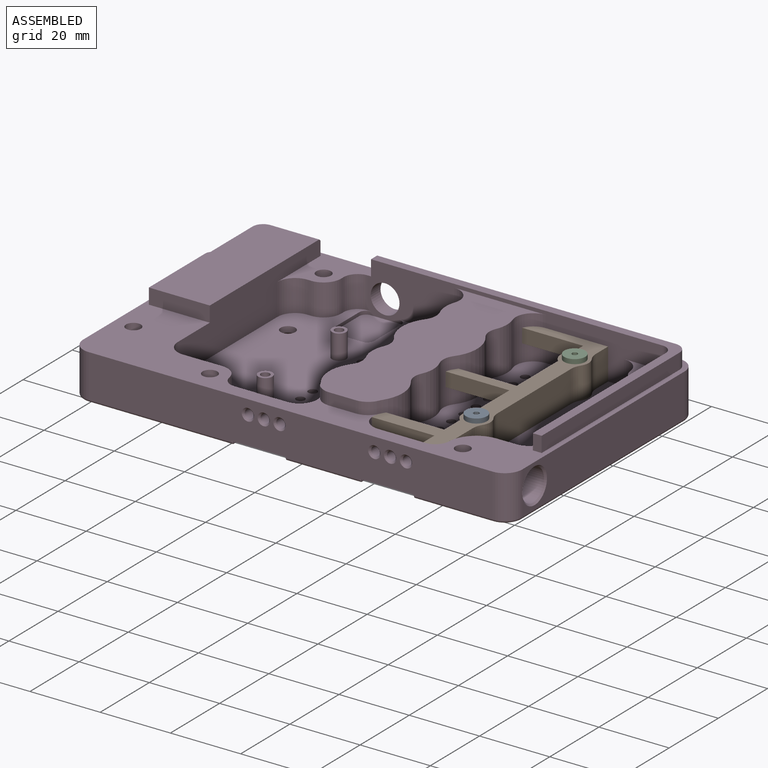
[diagram: assembled view]
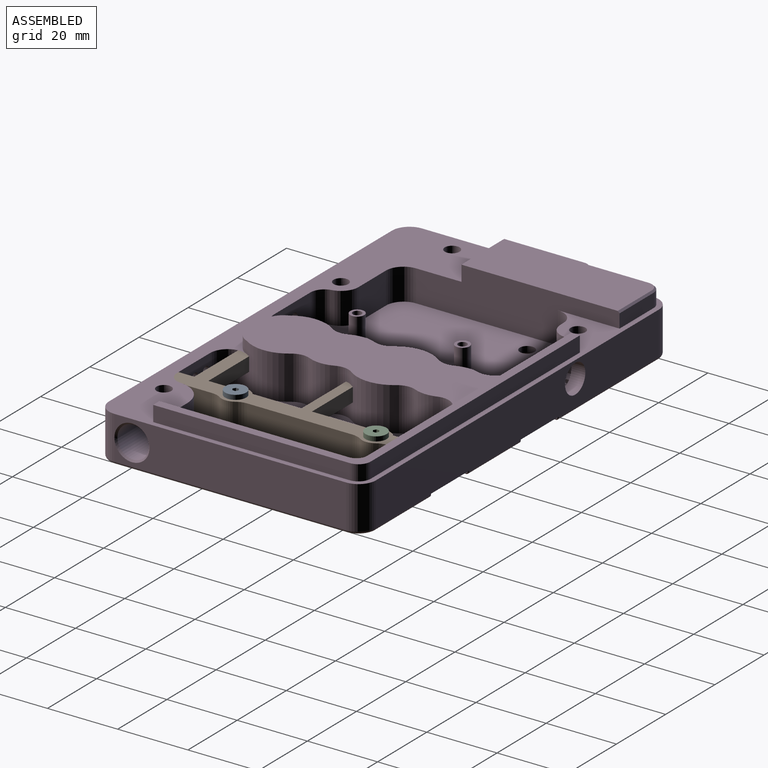
[diagram: assembled view, second angle]
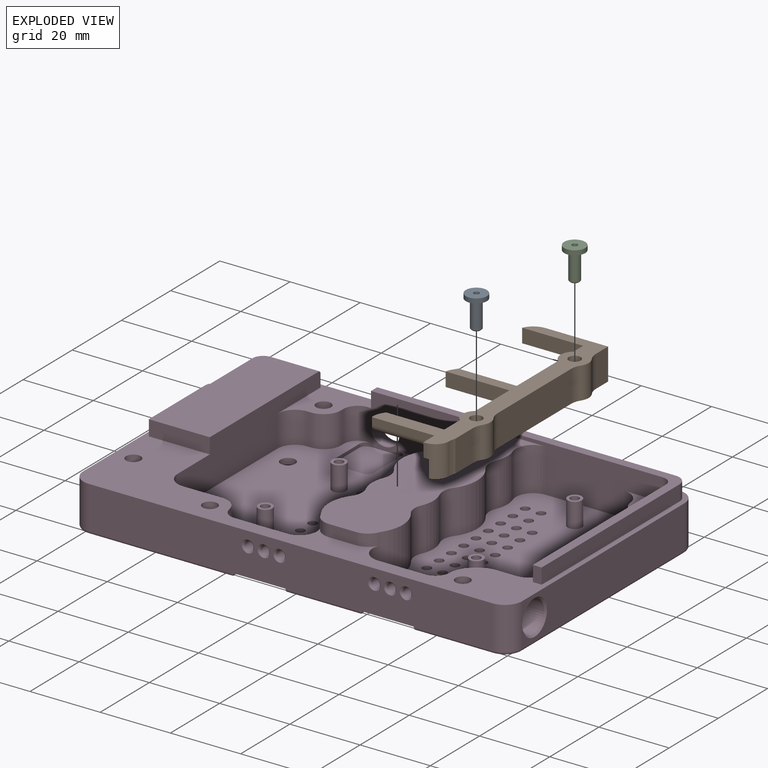
[diagram: exploded view]
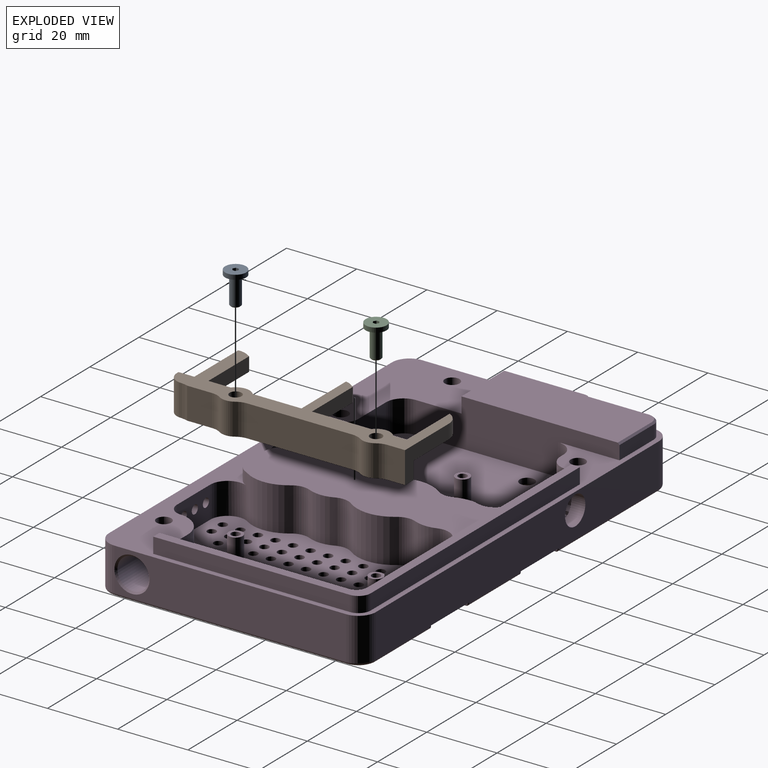
[diagram: exploded view, second angle]
ASSEMBLY  parts=4 mates=3
PART A: 20 faces, bbox 9.3x6x6 mm
  f0: cylinder r=3mm len=6mm, axis (-1,0,0), area 24.5mm2, adj f1,f13
  f1: plane 6x6mm, normal (-1,0,0), area 26.3mm2, adj f0,f2,f3,f4,f5,f6,f7
  f2: plane 2x0.75mm, normal (0,-0.87,0.5), area 1.7mm2, adj f1,f3,f4,f16,f17
  f3: plane 2x0.75mm, normal (0,-0.87,-0.5), area 1.7mm2, adj f1,f2,f7,f17,f18
  f4: plane 2x0.87mm, normal (0,0,1), area 1.7mm2, adj f1,f2,f5,f14,f16
  f5: plane 2x0.75mm, normal (0,0.87,0.5), area 1.7mm2, adj f1,f4,f6,f14,f15
  f6: plane 2x0.75mm, normal (0,0.87,-0.5), area 1.7mm2, adj f1,f5,f7,f15,f19
  f7: plane 2x0.87mm, normal (0,0,-1), area 1.7mm2, adj f1,f3,f6,f18,f19
  f8: cone r=0.75mm half-angle=60deg, axis (-1,0,0), area 2mm2, adj f14,f15,f16,f17,f18,f19
  f9: plane 2.39x2.39mm, normal (1,0,0), area 4.5mm2, adj f10
  f10: cone r=1.5mm half-angle=45deg, axis (-1,0,0), area 3.7mm2, adj f9,f11
  f11: cylinder r=1.5mm len=7.59mm, axis (-1,0,0), area 71.6mm2, adj f10,f12
  f12: torus R=1.6mm, axis (1,0,0), area 1.5mm2, adj f11,f13
  f13: plane 6x6mm, normal (1,0,0), area 20.2mm2, adj f0,f12
  f14: plane 0.65x0.38mm, normal (-1,0,0), area 0mm2, adj f4,f5,f8
  f15: plane 0.75x0.22mm, normal (-1,0,0), area 0mm2, adj f5,f6,f8
  f16: plane 0.65x0.38mm, normal (-1,0,0), area 0mm2, adj f2,f4,f8
  f17: plane 0.75x0.22mm, normal (-1,0,0), area 0mm2, adj f2,f3,f8
  f18: plane 0.65x0.38mm, normal (-1,0,0), area 0mm2, adj f3,f7,f8
  f19: plane 0.65x0.38mm, normal (-1,0,0), area 0mm2, adj f6,f7,f8
PART B: 47 faces, bbox 24.7x68x9 mm
  f0: plane 16.57x4mm, normal (0,-1,0), area 66.3mm2, adj f1,f21,f32,f46
  f1: plane 68x19.65mm, normal (0,0,-1), area 247.5mm2, adj f0,f3,f4,f5,f6,f9,f10,f11
  f2: plane 17.81x2mm, normal (0,1,0), area 35.6mm2, adj f3,f4,f32,f45
  f3: cylinder r=2mm len=17.84mm, axis (-1,0,0), area 55.9mm2, adj f1,f2,f4,f45
  f4: plane 6.5x4mm, normal (1,0,0), area 18.9mm2, adj f1,f2,f3,f22,f32
  f5: plane 36.42x5mm, normal (1,0,0), area 182.1mm2, adj f1,f33,f34,f36
  f6: plane 16.11x5mm, normal (1,0,0), area 80.6mm2, adj f1,f23,f33,f36
  f7: plane 4.1x3.05mm, normal (0,0,-1), area 2.8mm2, adj f29,f33,f37,f40
  f8: plane 4.1x3.05mm, normal (0,0,-1), area 2.8mm2, adj f31,f34,f38,f39
  f9: plane 17.81x9mm, normal (0,-1,0), area 88.7mm2, adj f1,f10,f30,f32,f35,f36
  f10: cylinder r=5mm len=4.58mm, axis (0,0,-1), area 23.2mm2, adj f1,f9,f11,f32
  f11: plane 17.39x4mm, normal (0,1,0), area 69.6mm2, adj f1,f10,f12,f32
  f12: plane 4x3.88mm, normal (1,0,0), area 15.5mm2, adj f1,f11,f13,f32
  f13: cylinder r=4mm len=6.25mm, axis (0,0,-1), area 28.7mm2, adj f1,f12,f14,f32
  f14: plane 16.88x4mm, normal (1,0,0), area 67.5mm2, adj f1,f13,f15,f32
  f15: plane 16.62x4mm, normal (0,-1,0), area 66.5mm2, adj f1,f14,f16,f32
  f16: cylinder r=10.7mm len=4mm, axis (0,0,-1), area 4.4mm2, adj f1,f15,f17,f32
  f17: cylinder r=5mm len=4mm, axis (0,0,-1), area 9.2mm2, adj f1,f16,f18,f32
  f18: plane 18.15x4mm, normal (0,1,0), area 72.6mm2, adj f1,f17,f19,f32
  f19: plane 13.88x4mm, normal (1,0,0), area 55.5mm2, adj f1,f18,f20,f32
  f20: cylinder r=4mm len=6.25mm, axis (0,0,-1), area 28.7mm2, adj f1,f19,f21,f32
  f21: plane 6.38x4mm, normal (1,0,0), area 25.5mm2, adj f0,f1,f20,f32
  f22: plane 4x0.63mm, normal (0,1,0), area 2.5mm2, adj f1,f4,f23,f32
  f23: cylinder r=4mm len=9mm, axis (0,0,-1), area 46.1mm2, adj f1,f6,f22,f24,f32,f36
  f24: cylinder r=8.17mm len=9mm, axis (0,0,-1), area 24mm2, adj f23,f25,f32,f36
  f25: plane 9x7.08mm, normal (-1,0,0), area 63.7mm2, adj f24,f32,f36,f42
  f26: cylinder r=4mm len=9mm, axis (0,0,-1), area 42.2mm2, adj f32,f36,f41,f42
  f27: plane 30.05x9mm, normal (-1,0,0), area 270.5mm2, adj f32,f36,f41,f43
  f28: cylinder r=4mm len=9mm, axis (0,0,-1), area 42.2mm2, adj f32,f36,f43,f44
  f29: cylinder r=1.7mm len=4mm, axis (0,0,-1), area 27.8mm2, adj f1,f7,f32,f37,f40
  f30: plane 9x5.03mm, normal (-1,0,0), area 45.2mm2, adj f9,f32,f36,f44
  f31: cylinder r=1.7mm len=4mm, axis (0,0,-1), area 27.8mm2, adj f1,f8,f32,f38,f39
  f32: plane 68x24.65mm, normal (0,0,1), area 514.5mm2, adj f0,f2,f4,f9,f10,f11,f12,f13
  f33: cylinder r=2.05mm len=7mm, axis (0,0,1), area 59.7mm2, adj f5,f6,f7,f36,f37,f40
  f34: cylinder r=2.05mm len=7mm, axis (0,0,1), area 59.7mm2, adj f5,f8,f35,f36,f38,f39
  f35: plane 8.21x5mm, normal (1,0,0), area 41.1mm2, adj f1,f9,f34,f36
  f36: plane 67.9x5mm, normal (0,0,-1), area 225.9mm2, adj f5,f6,f9,f23,f24,f25,f26,f27
  f37: plane 2x0.41mm, normal (-1,0,0), area 0.8mm2, adj f1,f7,f29,f33
  f38: plane 2x0.41mm, normal (-1,0,0), area 0.8mm2, adj f1,f8,f31,f34
  f39: plane 2x0.41mm, normal (-1,0,0), area 0.8mm2, adj f1,f8,f31,f34
  f40: plane 2x0.41mm, normal (-1,0,0), area 0.8mm2, adj f1,f7,f29,f33
  f41: cylinder r=5mm len=9mm, axis (0,0,-1), area 26.4mm2, adj f26,f27,f32,f36
  f42: cylinder r=5mm len=9mm, axis (0,0,-1), area 26.4mm2, adj f25,f26,f32,f36
  f43: cylinder r=5mm len=9mm, axis (0,0,-1), area 26.4mm2, adj f27,f28,f32,f36
  f44: cylinder r=5mm len=9mm, axis (0,0,-1), area 26.4mm2, adj f28,f30,f32,f36
  f45: cylinder r=5mm len=4mm, axis (0,0,1), area 12.8mm2, adj f1,f2,f3,f32,f46
  f46: cylinder r=10.5mm len=4mm, axis (0,0,1), area 3.5mm2, adj f0,f1,f32,f45
PART C: same geometry as A
PART D: 328 faces, bbox 126.1x77.1x17.7 mm
  f0: plane 68x45.38mm, normal (0,0,-1), area 2332mm2, adj f2,f4,f5,f6,f10,f12,f27,f53
  f1: plane 64x25.99mm, normal (0,0,-1), area 1135mm2, adj f2,f3,f4,f5,f6,f7,f8,f9
  f2: cylinder r=5mm len=12.4mm, axis (0,0,1), area 95.7mm2, adj f0,f1,f6,f10,f13,f221,f300
  f3: cylinder r=5mm len=12.4mm, axis (0,0,1), area 99.7mm2, adj f1,f11,f13,f25,f29,f301
  f4: cylinder r=10.7mm len=12.83mm, axis (0,0,1), area 170.6mm2, adj f0,f1,f219,f220
  f5: cylinder r=8.75mm len=12.4mm, axis (0,0,1), area 92.6mm2, adj f0,f1,f218,f219
  f6: cylinder r=10.5mm len=12.4mm, axis (0,0,1), area 158.4mm2, adj f0,f1,f2,f218
  f7: cylinder r=8.75mm len=12.4mm, axis (0,0,1), area 81.6mm2, adj f1,f29,f214,f217
  f8: cylinder r=10.7mm len=12.83mm, axis (0,0,1), area 170.6mm2, adj f1,f29,f216,f217
  f9: cylinder r=8.75mm len=12.4mm, axis (0,0,1), area 92.6mm2, adj f1,f29,f215,f216
  f10: plane 14.86x9mm, normal (0,1,0), area 123mm2, adj f0,f2,f13,f134,f221,f225,f226
  f11: cylinder r=10.5mm len=12.4mm, axis (0,0,1), area 158.4mm2, adj f1,f3,f29,f215
  f12: cylinder r=8.75mm len=12.4mm, axis (0,0,1), area 81.6mm2, adj f0,f1,f213,f220
  f13: plane 125x76mm, normal (0,0,-1), area 1906.4mm2, adj f2,f3,f10,f14,f17,f18,f25,f26
  f14: cylinder r=2.1mm len=10.7mm, axis (0,0,1), area 111mm2, adj f13,f56,f184,f185
  f15: cylinder r=5mm len=7mm, axis (0,0,1), area 51.5mm2, adj f27,f29,f52,f163
  f16: cylinder r=5mm len=7mm, axis (0,0,1), area 51.5mm2, adj f26,f29,f52,f163
  f17: plane 115x12.2mm, normal (0,-1,0), area 1339.1mm2, adj f13,f21,f22,f30,f31,f39,f137,f140
  f18: plane 115x12.2mm, normal (0,1,0), area 1344mm2, adj f13,f23,f24,f33,f34,f42,f137,f140
  f19: plane 74.4x21.1mm, normal (0,0,1), area 1094.6mm2, adj f21,f23,f150,f160,f209,f210,f211,f212
  f20: plane 74.4x26.55mm, normal (0,0,1), area 1846.1mm2, adj f22,f24,f41,f43,f44,f56,f59,f145
  f21: cylinder r=0.8mm len=21.1mm, axis (-1,0,0), area 26.5mm2, adj f17,f19,f151,f161
  f22: cylinder r=0.8mm len=22.35mm, axis (-1,0,0), area 28.1mm2, adj f17,f20,f41,f146
  f23: cylinder r=0.8mm len=21.1mm, axis (1,0,0), area 26.5mm2, adj f18,f19,f149,f159
  f24: cylinder r=0.8mm len=22.35mm, axis (1,0,0), area 28.1mm2, adj f18,f20,f44,f144
  f25: plane 13.46x9mm, normal (0,1,0), area 106.5mm2, adj f3,f13,f29,f135,f222,f223,f224
  f26: plane 54x13.42mm, normal (1,0,0), area 598.3mm2, adj f13,f16,f29,f128,f130,f163,f183,f199
  f27: plane 84x14.42mm, normal (0,-1,0), area 678.8mm2, adj f0,f1,f13,f15,f29,f128,f129,f136
  f28: plane 56x4.42mm, normal (-1,0,0), area 247.2mm2, adj f13,f60,f130,f199
  f29: plane 68x41.83mm, normal (0,0,-1), area 2259.8mm2, adj f3,f7,f8,f9,f11,f15,f16,f25
  f30: cylinder r=5mm len=12.2mm, axis (0,0,-1), area 95.8mm2, adj f13,f17,f35,f41
  f31: cylinder r=5mm len=12.2mm, axis (0,0,-1), area 95.8mm2, adj f13,f17,f32,f37
  f32: plane 66x12.2mm, normal (1,0,0), area 726.7mm2, adj f13,f31,f33,f38,f197
  f33: cylinder r=5mm len=12.2mm, axis (0,0,-1), area 95.8mm2, adj f13,f18,f32,f40
  f34: cylinder r=5mm len=12.2mm, axis (0,0,-1), area 95.8mm2, adj f13,f18,f35,f44
  f35: plane 66x12.2mm, normal (-1,0,0), area 726.7mm2, adj f13,f30,f34,f43,f198
  f36: plane 74.4x44.95mm, normal (0,0,1), area 2425.2mm2, adj f37,f38,f39,f40,f42,f57,f58,f132
  f37: torus R=4.2mm, axis (0,0,1), area 9.3mm2, adj f31,f36,f38,f39
  f38: cylinder r=0.8mm len=66mm, axis (0,-1,0), area 82.9mm2, adj f32,f36,f37,f40
  f39: cylinder r=0.8mm len=40.75mm, axis (-1,0,0), area 51.2mm2, adj f17,f36,f37,f156
  f40: torus R=4.2mm, axis (0,0,1), area 9.3mm2, adj f33,f36,f38,f42
  f41: torus R=4.2mm, axis (0,0,1), area 9.3mm2, adj f20,f22,f30,f43
  f42: cylinder r=0.8mm len=40.75mm, axis (1,0,0), area 51.2mm2, adj f18,f36,f40,f154
  f43: cylinder r=0.8mm len=66mm, axis (0,1,0), area 82.9mm2, adj f20,f35,f41,f44
  f44: torus R=4.2mm, axis (0,0,1), area 9.3mm2, adj f20,f24,f34,f43
  f45: cylinder r=6.7mm len=13.4mm, axis (0,0,1), area 517.8mm2, adj f207,f210
  f46: cylinder r=4.75mm len=12.3mm, axis (0,0,1), area 367.1mm2, adj f206,f211
  f47: cylinder r=6.5mm len=13mm, axis (0,0,1), area 502.3mm2, adj f208,f212
  f48: cylinder r=4.75mm len=12.3mm, axis (0,0,1), area 367.1mm2, adj f205,f209
  f49: cylinder r=2.1mm len=10.7mm, axis (0,0,1), area 141.2mm2, adj f13,f58
  f50: cylinder r=2.1mm len=10.7mm, axis (0,0,1), area 141.2mm2, adj f13,f57
  f51: cylinder r=2.1mm len=8.7mm, axis (0,0,1), area 114.8mm2, adj f59,f163
  f52: cylinder r=5mm len=7mm, axis (0,0,1), area 48mm2, adj f15,f16,f29,f163
  f53: cylinder r=5mm len=9mm, axis (0,0,1), area 63.2mm2, adj f0,f13,f133,f134
  f54: cylinder r=5mm len=9mm, axis (0,0,1), area 70.7mm2, adj f0,f13,f55,f200
  f55: plane 9x1mm, normal (-1,0,0), area 9mm2, adj f0,f13,f54,f136
  f56: cone r=2.1mm half-angle=45deg, axis (0,0,1), area 66.4mm2, adj f14,f20
  f57: cone r=2.1mm half-angle=45deg, axis (0,0,1), area 66.4mm2, adj f36,f50
  f58: cone r=2.1mm half-angle=45deg, axis (0,0,1), area 66.4mm2, adj f36,f49
  f59: cone r=2.1mm half-angle=45deg, axis (0,0,1), area 66.4mm2, adj f20,f51
  f60: cylinder r=3.5mm len=4.42mm, axis (0,0,1), area 24.3mm2, adj f13,f28,f61,f199
  f61: plane 85x4.42mm, normal (0,1,0), area 375.3mm2, adj f13,f60,f129,f199
  f62: cylinder r=1.25mm len=2.5mm, axis (0,0,1), area 19.6mm2, adj f29,f290
  f63: cylinder r=1.25mm len=2.5mm, axis (0,0,1), area 19.6mm2, adj f29,f230
  f64: cylinder r=1.25mm len=2.5mm, axis (0,0,1), area 19.6mm2, adj f0,f259
  f65: cylinder r=1.25mm len=2.5mm, axis (0,0,1), area 19.6mm2, adj f0,f260
  f66: cylinder r=1.25mm len=2.5mm, axis (0,0,1), area 19.6mm2, adj f0,f264
  f67: cylinder r=1.25mm len=2.5mm, axis (0,0,1), area 19.6mm2, adj f0,f265
  f68: cylinder r=1.25mm len=2.5mm, axis (0,0,1), area 19.6mm2, adj f0,f279
  f69: cylinder r=1.25mm len=2.5mm, axis (0,0,1), area 19.6mm2, adj f0,f284
  f70: cylinder r=1.25mm len=2.5mm, axis (0,0,1), area 19.6mm2, adj f0,f281
  f71: cylinder r=1.25mm len=2.5mm, axis (0,0,1), area 19.6mm2, adj f0,f268
  f72: cylinder r=1.25mm len=2.5mm, axis (0,0,1), area 19.6mm2, adj f29,f273
  f73: cylinder r=1.25mm len=2.5mm, axis (0,0,1), area 19.6mm2, adj f29,f277
  f74: cylinder r=1.25mm len=2.5mm, axis (0,0,1), area 19.6mm2, adj f29,f288
  f75: cylinder r=1.25mm len=2.5mm, axis (0,0,1), area 19.6mm2, adj f29,f289
  f76: cylinder r=1.25mm len=2.5mm, axis (0,0,1), area 19.6mm2, adj f29,f276
  f77: cylinder r=1.25mm len=2.5mm, axis (0,0,1), area 19.6mm2, adj f29,f278
  f78: cylinder r=1.25mm len=2.5mm, axis (0,0,1), area 19.6mm2, adj f29,f274
  f79: cylinder r=1.25mm len=2.5mm, axis (0,0,1), area 19.6mm2, adj f29,f275
  f80: cylinder r=1.25mm len=2.5mm, axis (0,0,1), area 19.6mm2, adj f29,f291
  f81: cylinder r=1.25mm len=2.5mm, axis (0,0,1), area 19.6mm2, adj f0,f292
  f82: cylinder r=1.25mm len=2.5mm, axis (0,0,1), area 19.6mm2, adj f0,f294
  f83: cylinder r=1.25mm len=2.5mm, axis (0,0,1), area 19.6mm2, adj f0,f293
  f84: cylinder r=1.25mm len=2.5mm, axis (0,0,1), area 19.6mm2, adj f0,f286
  f85: cylinder r=1.25mm len=2.5mm, axis (0,0,1), area 19.6mm2, adj f0,f285
  f86: cylinder r=1.25mm len=2.5mm, axis (0,0,1), area 19.6mm2, adj f0,f280
  f87: cylinder r=1.25mm len=2.5mm, axis (0,0,1), area 19.6mm2, adj f29,f256
  f88: cylinder r=1.25mm len=2.5mm, axis (0,0,1), area 19.6mm2, adj f29,f250
  f89: cylinder r=1.25mm len=2.5mm, axis (0,0,1), area 19.6mm2, adj f29,f251
  f90: cylinder r=1.25mm len=2.5mm, axis (0,0,1), area 19.6mm2, adj f29,f254
  f91: cylinder r=1.25mm len=2.5mm, axis (0,0,1), area 19.6mm2, adj f29,f253
  f92: cylinder r=1.25mm len=2.5mm, axis (0,0,1), area 19.6mm2, adj f29,f269
  f93: cylinder r=1.25mm len=2.5mm, axis (0,0,1), area 19.6mm2, adj f29,f270
  f94: cylinder r=1.25mm len=2.5mm, axis (0,0,1), area 19.6mm2, adj f29,f271
  f95: cylinder r=1.25mm len=2.5mm, axis (0,0,1), area 19.6mm2, adj f29,f272
  f96: cylinder r=1.25mm len=2.5mm, axis (0,0,1), area 19.6mm2, adj f0,f234
  f97: cylinder r=1.25mm len=2.5mm, axis (0,0,1), area 19.6mm2, adj f0,f233
  f98: cylinder r=1.25mm len=2.5mm, axis (0,0,1), area 19.6mm2, adj f29,f243
  f99: cylinder r=1.25mm len=2.5mm, axis (0,0,1), area 19.6mm2, adj f29,f242
  f100: cylinder r=1.25mm len=2.5mm, axis (0,0,1), area 19.6mm2, adj f29,f239
  f101: cylinder r=1.25mm len=2.5mm, axis (0,0,1), area 19.6mm2, adj f0,f232
  f102: cylinder r=1.25mm len=2.5mm, axis (0,0,1), area 19.6mm2, adj f0,f231
  f103: cylinder r=1.25mm len=2.5mm, axis (0,0,1), area 19.6mm2, adj f0,f237
  f104: cylinder r=1.25mm len=2.5mm, axis (0,0,1), area 19.6mm2, adj f29,f249
  f105: cylinder r=1.25mm len=2.5mm, axis (0,0,1), area 19.6mm2, adj f29,f241
  f106: cylinder r=1.25mm len=2.5mm, axis (0,0,1), area 19.6mm2, adj f29,f240
  f107: cylinder r=1.25mm len=2.5mm, axis (0,0,1), area 19.6mm2, adj f0,f236
  f108: cylinder r=1.25mm len=2.5mm, axis (0,0,1), area 19.6mm2, adj f29,f244
  f109: cylinder r=1.25mm len=2.5mm, axis (0,0,1), area 19.6mm2, adj f29,f248
  f110: cylinder r=1.25mm len=2.5mm, axis (0,0,1), area 19.6mm2, adj f29,f247
  f111: cylinder r=1.25mm len=2.5mm, axis (0,0,1), area 19.6mm2, adj f0,f246
  f112: cylinder r=1.25mm len=2.5mm, axis (0,0,1), area 19.6mm2, adj f0,f263
  f113: cylinder r=1.25mm len=2.5mm, axis (0,0,1), area 19.6mm2, adj f0,f266
  f114: cylinder r=1.25mm len=2.5mm, axis (0,0,1), area 19.6mm2, adj f0,f267
  f115: cylinder r=1.25mm len=2.5mm, axis (0,0,1), area 19.6mm2, adj f0,f282
  f116: cylinder r=1.25mm len=2.5mm, axis (0,0,1), area 19.6mm2, adj f29,f257
  f117: cylinder r=1.25mm len=2.5mm, axis (0,0,1), area 19.6mm2, adj f0,f258
  f118: cylinder r=1.25mm len=2.5mm, axis (0,0,1), area 19.6mm2, adj f0,f235
  f119: cylinder r=1.25mm len=2.5mm, axis (0,0,1), area 19.6mm2, adj f29,f255
  f120: cylinder r=1.25mm len=2.5mm, axis (0,0,1), area 19.6mm2, adj f0,f229
  f121: cylinder r=1.25mm len=2.5mm, axis (0,0,1), area 19.6mm2, adj f0,f238
  f122: cylinder r=1.25mm len=2.5mm, axis (0,0,1), area 19.6mm2, adj f0,f245
  f123: cylinder r=1.25mm len=2.5mm, axis (0,0,1), area 19.6mm2, adj f0,f283
  f124: cylinder r=1.25mm len=2.5mm, axis (0,0,1), area 19.6mm2, adj f29,f287
  f125: cylinder r=1.25mm len=2.5mm, axis (0,0,1), area 19.6mm2, adj f29,f252
  f126: cylinder r=1.25mm len=2.5mm, axis (0,0,1), area 19.6mm2, adj f0,f262
  f127: cylinder r=1.25mm len=2.5mm, axis (0,0,1), area 19.6mm2, adj f0,f261
  f128: cylinder r=3mm len=6.42mm, axis (0,0,-1), area 30.2mm2, adj f26,f27,f163,f199
  f129: plane 4.42x2.5mm, normal (1,0,0), area 11mm2, adj f13,f27,f61,f199
  f130: plane 4.42x2.5mm, normal (0,-1,0), area 11mm2, adj f13,f26,f28,f199
  f131: cylinder r=2.1mm len=10.7mm, axis (0,0,1), area 141.2mm2, adj f13,f132
  f132: cone r=2.1mm half-angle=45deg, axis (0,0,1), area 66.4mm2, adj f36,f131
  f133: plane 11.15x9mm, normal (0,1,0), area 100.3mm2, adj f0,f13,f53,f202
  f134: cylinder r=4mm len=9mm, axis (0,0,1), area 50.5mm2, adj f0,f10,f13,f53
  f135: cylinder r=4mm len=9mm, axis (0,0,1), area 50.5mm2, adj f13,f25,f29,f182
  f136: cylinder r=4mm len=9mm, axis (0,0,-1), area 56.5mm2, adj f0,f13,f27,f55
  f137: plane 76x15.4mm, normal (0,0,1), area 822.6mm2, adj f17,f18,f138,f139,f143,f147,f148,f152
  f138: plane 75.6x0.8mm, normal (-1,0,0), area 60.3mm2, adj f137,f148,f149,f150,f151,f152
  f139: plane 75.6x0.8mm, normal (1,0,0), area 60.3mm2, adj f137,f143,f144,f145,f146,f147
  f140: plane 76x15.4mm, normal (0,0,1), area 822.6mm2, adj f17,f18,f141,f142,f153,f157,f158,f162
  f141: plane 75.6x0.8mm, normal (1,0,0), area 60.3mm2, adj f140,f158,f159,f160,f161,f162
  f142: plane 75.6x0.8mm, normal (-1,0,0), area 60.3mm2, adj f140,f153,f154,f155,f156,f157
  f143: plane 0.2x0.2mm, normal (0.71,0.71,0), area 0.1mm2, adj f18,f137,f139,f144
  f144: cone r=0.8mm half-angle=45deg, axis (-1,0,0), area 0.3mm2, adj f24,f139,f143,f145
  f145: plane 74.4x0.2mm, normal (0.71,0,0.71), area 21mm2, adj f20,f139,f144,f146
  f146: cone r=0.8mm half-angle=45deg, axis (-1,0,0), area 0.3mm2, adj f22,f139,f145,f147
  f147: plane 0.2x0.2mm, normal (0.71,-0.71,0), area 0.1mm2, adj f17,f137,f139,f146
  f148: plane 0.2x0.2mm, normal (-0.71,0.71,0), area 0.1mm2, adj f18,f137,f138,f149
  f149: cone r=0.6mm half-angle=45deg, axis (1,0,0), area 0.3mm2, adj f23,f138,f148,f150
  f150: plane 74.4x0.2mm, normal (-0.71,0,0.71), area 21mm2, adj f19,f138,f149,f151
  f151: cone r=0.6mm half-angle=45deg, axis (1,0,0), area 0.3mm2, adj f21,f138,f150,f152
  f152: plane 0.2x0.2mm, normal (-0.71,-0.71,0), area 0.1mm2, adj f17,f137,f138,f151
  f153: plane 0.2x0.2mm, normal (-0.71,0.71,0), area 0.1mm2, adj f18,f140,f142,f154
  f154: cone r=0.6mm half-angle=45deg, axis (1,0,0), area 0.3mm2, adj f42,f142,f153,f155
  f155: plane 74.4x0.2mm, normal (-0.71,0,0.71), area 21mm2, adj f36,f142,f154,f156
  f156: cone r=0.6mm half-angle=45deg, axis (1,0,0), area 0.3mm2, adj f39,f142,f155,f157
  f157: plane 0.2x0.2mm, normal (-0.71,-0.71,0), area 0.1mm2, adj f17,f140,f142,f156
  f158: plane 0.2x0.2mm, normal (0.71,0.71,0), area 0.1mm2, adj f18,f140,f141,f159
  f159: cone r=0.8mm half-angle=45deg, axis (-1,0,0), area 0.3mm2, adj f23,f141,f158,f160
  f160: plane 74.4x0.2mm, normal (0.71,0,0.71), area 21mm2, adj f19,f141,f159,f161
  f161: cone r=0.8mm half-angle=45deg, axis (-1,0,0), area 0.3mm2, adj f21,f141,f160,f162
  f162: plane 0.2x0.2mm, normal (0.71,-0.71,0), area 0.1mm2, adj f17,f140,f141,f161
  f163: plane 13.95x13.95mm, normal (0,0,-1), area 70.1mm2, adj f15,f16,f26,f27,f51,f52,f128
  f164: cylinder r=2.5mm len=2.5mm, axis (0,0,1), area 1mm2, adj f165,f171,f172,f175
  f165: plane 15x0.25mm, normal (0,1,0), area 3.8mm2, adj f164,f166,f172,f177
  f166: cylinder r=2.5mm len=2.5mm, axis (0,0,1), area 1mm2, adj f165,f167,f172,f179
  f167: plane 25x0.25mm, normal (-1,0,0), area 6.3mm2, adj f166,f168,f172,f180
  f168: cylinder r=2.5mm len=2.5mm, axis (0,0,1), area 1mm2, adj f167,f169,f172,f178
  f169: plane 15x0.25mm, normal (0,-1,0), area 3.8mm2, adj f168,f170,f172,f176
  f170: cylinder r=2.5mm len=2.5mm, axis (0,0,1), area 1mm2, adj f169,f171,f172,f174
  f171: plane 25x0.25mm, normal (1,0,0), area 6.3mm2, adj f164,f170,f172,f173
  f172: plane 30x20mm, normal (0,0,1), area 594.6mm2, adj f164,f165,f166,f167,f168,f169,f170,f171
  f173: plane 25x0.75mm, normal (0.71,0,0.71), area 26.5mm2, adj f36,f171,f174,f175
  f174: cone r=2.5mm half-angle=45deg, axis (0,0,1), area 4.8mm2, adj f36,f170,f173,f176
  f175: cone r=2.5mm half-angle=45deg, axis (0,0,1), area 4.8mm2, adj f36,f164,f173,f177
  f176: plane 15x0.75mm, normal (0,-0.71,0.71), area 15.9mm2, adj f36,f169,f174,f178
  f177: plane 15x0.75mm, normal (0,0.71,0.71), area 15.9mm2, adj f36,f165,f175,f179
  f178: cone r=2.5mm half-angle=45deg, axis (0,0,1), area 4.8mm2, adj f36,f168,f176,f180
  f179: cone r=2.5mm half-angle=45deg, axis (0,0,1), area 4.8mm2, adj f36,f166,f177,f180
  f180: plane 25x0.75mm, normal (-0.71,0,0.71), area 26.5mm2, adj f36,f167,f178,f179
  f181: plane 9x5.76mm, normal (0,1,0), area 51.9mm2, adj f13,f29,f182,f183
  f182: cylinder r=8.17mm len=9mm, axis (0,0,1), area 115.5mm2, adj f13,f29,f135,f181
  f183: cylinder r=5mm len=9mm, axis (0,0,1), area 70.7mm2, adj f13,f26,f29,f181
  f184: cone r=0mm half-angle=59deg, axis (-1,0,0), area 52.3mm2, adj f14,f185
  f185: cylinder r=4.5mm len=16.5mm, axis (-1,0,0), area 456.8mm2, adj f14,f184,f198
  f186: cone r=0mm half-angle=59deg, axis (1,0,0), area 74.2mm2, adj f187
  f187: cylinder r=4.5mm len=16.5mm, axis (1,0,0), area 466.5mm2, adj f186,f197
  f188: cylinder r=3.5mm len=3.92mm, axis (0,0,1), area 21.5mm2, adj f13,f189,f192,f195
  f189: plane 41.5x4.42mm, normal (1,0,0), area 174mm2, adj f13,f188,f190,f193,f194,f311
  f190: plane 17.35x4.42mm, normal (0,-1,0), area 76.6mm2, adj f13,f189,f191,f193
  f191: plane 58x13.42mm, normal (-1,0,0), area 563mm2, adj f0,f13,f190,f192,f193,f196,f201,f202
  f192: plane 13.85x3.92mm, normal (0,1,0), area 54.2mm2, adj f13,f188,f191,f196
  f193: plane 44.5x17.35mm, normal (0,0,-1), area 759.9mm2, adj f189,f190,f191,f194,f195,f196,f311
  f194: plane 18.74x0.74mm, normal (0.71,0,-0.71), area 12.4mm2, adj f189,f193,f195,f311
  f195: cone r=3mm half-angle=45deg, axis (0,0,1), area 3.6mm2, adj f188,f193,f194,f196
  f196: plane 13.85x0.5mm, normal (0,0.71,-0.71), area 9.8mm2, adj f191,f192,f193,f195
  f197: cone r=4.5mm half-angle=45deg, axis (1,0,0), area 21.1mm2, adj f32,f187
  f198: cone r=4.5mm half-angle=45deg, axis (-1,0,0), area 21.1mm2, adj f35,f185
  f199: plane 88.5x59.5mm, normal (0,0,-1), area 363.1mm2, adj f26,f27,f28,f60,f61,f128,f129,f130
  f200: plane 9x1.15mm, normal (0,-1,0), area 10.3mm2, adj f0,f13,f54,f201
  f201: cylinder r=5mm len=9mm, axis (0,0,-1), area 70.7mm2, adj f0,f13,f191,f200
  f202: cylinder r=5mm len=9mm, axis (0,0,-1), area 70.7mm2, adj f0,f13,f133,f191
  f203: cylinder r=2.1mm len=4.2mm, axis (0,0,1), area 22.4mm2, adj f0,f204
  f204: cone r=2.1mm half-angle=45deg, axis (0,0,1), area 66.4mm2, adj f36,f203
  f205: plane 9.5x9.5mm, normal (0,0,1), area 70.9mm2, adj f48
  f206: plane 9.5x9.5mm, normal (0,0,1), area 70.9mm2, adj f46
  f207: plane 13.4x13.4mm, normal (0,0,1), area 141mm2, adj f45
  f208: plane 13x13mm, normal (0,0,1), area 132.7mm2, adj f47
  f209: cone r=4.75mm half-angle=30deg, axis (0,0,1), area 25.1mm2, adj f19,f48
  f210: cone r=6.7mm half-angle=30deg, axis (0,0,1), area 35.1mm2, adj f19,f45
  f211: cone r=4.75mm half-angle=30deg, axis (0,0,1), area 25.1mm2, adj f19,f46
  f212: cone r=6.5mm half-angle=30deg, axis (0,0,1), area 34mm2, adj f19,f47
  f213: cylinder r=5mm len=12.4mm, axis (0,0,1), area 118.1mm2, adj f0,f1,f12,f27
  f214: cylinder r=5mm len=12.4mm, axis (0,0,1), area 118.1mm2, adj f1,f7,f27,f29
  f215: cylinder r=5mm len=12.4mm, axis (0,0,1), area 66.4mm2, adj f1,f9,f11,f29
  f216: cylinder r=5mm len=12.4mm, axis (0,0,1), area 65.8mm2, adj f1,f8,f9,f29
  f217: cylinder r=5mm len=12.4mm, axis (0,0,1), area 65.8mm2, adj f1,f7,f8,f29
  f218: cylinder r=5mm len=12.4mm, axis (0,0,1), area 66.4mm2, adj f0,f1,f5,f6
  f219: cylinder r=5mm len=12.4mm, axis (0,0,1), area 65.8mm2, adj f0,f1,f4,f5
  f220: cylinder r=5mm len=12.4mm, axis (0,0,1), area 65.8mm2, adj f0,f1,f4,f12
  f221: cylinder r=1.25mm len=3.86mm, axis (0,-1,0), area 28.4mm2, adj f2,f10,f295
  f222: cylinder r=1.25mm len=3.5mm, axis (0,-1,0), area 27.5mm2, adj f25,f296
  f223: cylinder r=1.25mm len=3.5mm, axis (0,-1,0), area 27.5mm2, adj f25,f297
  f224: cylinder r=1.25mm len=3.5mm, axis (0,-1,0), area 27.5mm2, adj f25,f298
  f225: cylinder r=1.25mm len=3.5mm, axis (0,-1,0), area 27.5mm2, adj f10,f227
  f226: cylinder r=1.25mm len=3.5mm, axis (0,-1,0), area 27.5mm2, adj f10,f228
  f227: cone r=1.25mm half-angle=45deg, axis (0,-1,0), area 6.7mm2, adj f17,f225
  f228: cone r=1.25mm half-angle=45deg, axis (0,-1,0), area 6.7mm2, adj f17,f226
  f229: cone r=1.25mm half-angle=45deg, axis (0,0,1), area 6.7mm2, adj f120,f140
  f230: cone r=1.25mm half-angle=45deg, axis (0,0,1), area 6.7mm2, adj f63,f137
  f231: cone r=1.25mm half-angle=45deg, axis (0,0,1), area 6.7mm2, adj f102,f140
  f232: cone r=1.25mm half-angle=45deg, axis (0,0,1), area 6.7mm2, adj f101,f140
  f233: cone r=1.25mm half-angle=45deg, axis (0,0,1), area 6.7mm2, adj f97,f140
  f234: cone r=1.25mm half-angle=45deg, axis (0,0,1), area 6.7mm2, adj f96,f140
  f235: cone r=1.25mm half-angle=45deg, axis (0,0,1), area 6.7mm2, adj f118,f140
  f236: cone r=1.25mm half-angle=45deg, axis (0,0,1), area 6.7mm2, adj f107,f140
  f237: cone r=1.25mm half-angle=45deg, axis (0,0,1), area 6.7mm2, adj f103,f140
  f238: cone r=1.25mm half-angle=45deg, axis (0,0,1), area 6.7mm2, adj f121,f140
  f239: cone r=1.25mm half-angle=45deg, axis (0,0,1), area 6.7mm2, adj f100,f137
  f240: cone r=1.25mm half-angle=45deg, axis (0,0,1), area 6.7mm2, adj f106,f137
  f241: cone r=1.25mm half-angle=45deg, axis (0,0,1), area 6.7mm2, adj f105,f137
  f242: cone r=1.25mm half-angle=45deg, axis (0,0,1), area 6.7mm2, adj f99,f137
  f243: cone r=1.25mm half-angle=45deg, axis (0,0,1), area 6.7mm2, adj f98,f137
  f244: cone r=1.25mm half-angle=45deg, axis (0,0,1), area 6.7mm2, adj f108,f137
  f245: cone r=1.25mm half-angle=45deg, axis (0,0,1), area 6.7mm2, adj f122,f140
  f246: cone r=1.25mm half-angle=45deg, axis (0,0,1), area 6.7mm2, adj f111,f140
  f247: cone r=1.25mm half-angle=45deg, axis (0,0,1), area 6.7mm2, adj f110,f137
  f248: cone r=1.25mm half-angle=45deg, axis (0,0,1), area 6.7mm2, adj f109,f137
  f249: cone r=1.25mm half-angle=45deg, axis (0,0,1), area 6.7mm2, adj f104,f137
  f250: cone r=1.25mm half-angle=45deg, axis (0,0,1), area 6.7mm2, adj f88,f137
  f251: cone r=1.25mm half-angle=45deg, axis (0,0,1), area 6.7mm2, adj f89,f137
  f252: cone r=1.25mm half-angle=45deg, axis (0,0,1), area 6.7mm2, adj f125,f137
  f253: cone r=1.25mm half-angle=45deg, axis (0,0,1), area 6.7mm2, adj f91,f137
  f254: cone r=1.25mm half-angle=45deg, axis (0,0,1), area 6.7mm2, adj f90,f137
  f255: cone r=1.25mm half-angle=45deg, axis (0,0,1), area 6.7mm2, adj f119,f137
  f256: cone r=1.25mm half-angle=45deg, axis (0,0,1), area 6.7mm2, adj f87,f137
  f257: cone r=1.25mm half-angle=45deg, axis (0,0,1), area 6.7mm2, adj f116,f137
  f258: cone r=1.25mm half-angle=45deg, axis (0,0,1), area 6.7mm2, adj f117,f140
  f259: cone r=1.25mm half-angle=45deg, axis (0,0,1), area 6.7mm2, adj f64,f140
  f260: cone r=1.25mm half-angle=45deg, axis (0,0,1), area 6.7mm2, adj f65,f140
  f261: cone r=1.25mm half-angle=45deg, axis (0,0,1), area 6.7mm2, adj f127,f140
  f262: cone r=1.25mm half-angle=45deg, axis (0,0,1), area 6.7mm2, adj f126,f140
  f263: cone r=1.25mm half-angle=45deg, axis (0,0,1), area 6.7mm2, adj f112,f140
  f264: cone r=1.25mm half-angle=45deg, axis (0,0,1), area 6.7mm2, adj f66,f140
  f265: cone r=1.25mm half-angle=45deg, axis (0,0,1), area 6.7mm2, adj f67,f140
  f266: cone r=1.25mm half-angle=45deg, axis (0,0,1), area 6.7mm2, adj f113,f140
  f267: cone r=1.25mm half-angle=45deg, axis (0,0,1), area 6.7mm2, adj f114,f140
  f268: cone r=1.25mm half-angle=45deg, axis (0,0,1), area 6.7mm2, adj f71,f140
  f269: cone r=1.25mm half-angle=45deg, axis (0,0,1), area 6.7mm2, adj f92,f137
  f270: cone r=1.25mm half-angle=45deg, axis (0,0,1), area 6.7mm2, adj f93,f137
  f271: cone r=1.25mm half-angle=45deg, axis (0,0,1), area 6.7mm2, adj f94,f137
  f272: cone r=1.25mm half-angle=45deg, axis (0,0,1), area 6.7mm2, adj f95,f137
  f273: cone r=1.25mm half-angle=45deg, axis (0,0,1), area 6.7mm2, adj f72,f137
  f274: cone r=1.25mm half-angle=45deg, axis (0,0,1), area 6.7mm2, adj f78,f137
  f275: cone r=1.25mm half-angle=45deg, axis (0,0,1), area 6.7mm2, adj f79,f137
  f276: cone r=1.25mm half-angle=45deg, axis (0,0,1), area 6.7mm2, adj f76,f137
  f277: cone r=1.25mm half-angle=45deg, axis (0,0,1), area 6.7mm2, adj f73,f137
  f278: cone r=1.25mm half-angle=45deg, axis (0,0,1), area 6.7mm2, adj f77,f137
  f279: cone r=1.25mm half-angle=45deg, axis (0,0,1), area 6.7mm2, adj f68,f140
  f280: cone r=1.25mm half-angle=45deg, axis (0,0,1), area 6.7mm2, adj f86,f140
  f281: cone r=1.25mm half-angle=45deg, axis (0,0,1), area 6.7mm2, adj f70,f140
  f282: cone r=1.25mm half-angle=45deg, axis (0,0,1), area 6.7mm2, adj f115,f140
  f283: cone r=1.25mm half-angle=45deg, axis (0,0,1), area 6.7mm2, adj f123,f140
  f284: cone r=1.25mm half-angle=45deg, axis (0,0,1), area 6.7mm2, adj f69,f140
  f285: cone r=1.25mm half-angle=45deg, axis (0,0,1), area 6.7mm2, adj f85,f140
  f286: cone r=1.25mm half-angle=45deg, axis (0,0,1), area 6.7mm2, adj f84,f140
  f287: cone r=1.25mm half-angle=45deg, axis (0,0,1), area 6.7mm2, adj f124,f137
  f288: cone r=1.25mm half-angle=45deg, axis (0,0,1), area 6.7mm2, adj f74,f137
  f289: cone r=1.25mm half-angle=45deg, axis (0,0,1), area 6.7mm2, adj f75,f137
  f290: cone r=1.25mm half-angle=45deg, axis (0,0,1), area 6.7mm2, adj f62,f137
  f291: cone r=1.25mm half-angle=45deg, axis (0,0,1), area 6.7mm2, adj f80,f137
  f292: cone r=1.25mm half-angle=45deg, axis (0,0,1), area 6.7mm2, adj f81,f140
  f293: cone r=1.25mm half-angle=45deg, axis (0,0,1), area 6.7mm2, adj f83,f140
  f294: cone r=1.25mm half-angle=45deg, axis (0,0,1), area 6.7mm2, adj f82,f140
  f295: cone r=1.25mm half-angle=45deg, axis (0,-1,0), area 6.7mm2, adj f17,f221
  f296: cone r=1.25mm half-angle=45deg, axis (0,-1,0), area 6.7mm2, adj f17,f222
  f297: cone r=1.25mm half-angle=45deg, axis (0,-1,0), area 6.7mm2, adj f17,f223
  f298: cone r=1.25mm half-angle=45deg, axis (0,-1,0), area 6.7mm2, adj f17,f224
  f299: plane 7.59x3.4mm, normal (0,-1,0), area 25.8mm2, adj f1,f13,f300,f301
  f300: cylinder r=5mm len=4.58mm, axis (0,0,1), area 19.7mm2, adj f1,f2,f13,f299
  f301: cylinder r=5mm len=4.58mm, axis (0,0,1), area 19.7mm2, adj f1,f3,f13,f299
  f302: cylinder r=4.1mm len=8.2mm, axis (0,-1,0), area 103mm2, adj f18,f27
  f303: cylinder r=2mm len=2mm, axis (0,0,-1), area 3.1mm2, adj f0,f27,f304,f310
  f304: plane 11x1mm, normal (-1,0,0), area 11mm2, adj f0,f303,f305,f310
  f305: cylinder r=2mm len=2mm, axis (0,0,-1), area 3.1mm2, adj f0,f304,f306,f310
  f306: plane 8x1mm, normal (0,1,0), area 8mm2, adj f0,f305,f307,f310
  f307: cylinder r=2mm len=2mm, axis (0,0,-1), area 3.1mm2, adj f0,f306,f308,f310
  f308: plane 11x1mm, normal (1,0,0), area 11mm2, adj f0,f307,f309,f310
  f309: cylinder r=2mm len=2mm, axis (0,0,-1), area 3.1mm2, adj f0,f27,f308,f310
  f310: plane 15x12mm, normal (0,0,-1), area 176.6mm2, adj f27,f303,f304,f305,f306,f307,f308,f309
  f311: cylinder r=2mm len=1.32mm, axis (0,0,-1), area 0.4mm2, adj f189,f193,f194
  f312: cylinder r=2mm len=7mm, axis (0,0,1), area 88mm2, adj f29,f313
  f313: plane 4x4mm, normal (0,0,-1), area 7.7mm2, adj f312,f327
  f314: cylinder r=2mm len=7mm, axis (0,0,1), area 88mm2, adj f29,f315
  f315: plane 4x4mm, normal (0,0,-1), area 7.7mm2, adj f314,f325
  f316: cylinder r=2mm len=7mm, axis (0,0,1), area 88mm2, adj f0,f317
  f317: plane 4x4mm, normal (0,0,-1), area 7.7mm2, adj f316,f323
  f318: cylinder r=2mm len=7mm, axis (0,0,1), area 88mm2, adj f0,f319
  f319: plane 4x4mm, normal (0,0,-1), area 7.7mm2, adj f318,f321
  f320: cone r=0mm half-angle=59deg, axis (0,0,-1), area 5.7mm2, adj f321
  f321: cylinder r=1.25mm len=6mm, axis (0,0,-1), area 47.1mm2, adj f319,f320
  f322: cone r=0mm half-angle=59deg, axis (0,0,-1), area 5.7mm2, adj f323
  f323: cylinder r=1.25mm len=6mm, axis (0,0,-1), area 47.1mm2, adj f317,f322
  f324: cone r=0mm half-angle=59deg, axis (0,0,-1), area 5.7mm2, adj f325
  f325: cylinder r=1.25mm len=6mm, axis (0,0,-1), area 47.1mm2, adj f315,f324
  f326: cone r=0mm half-angle=59deg, axis (0,0,-1), area 5.7mm2, adj f327
  f327: cylinder r=1.25mm len=6mm, axis (0,0,-1), area 47.1mm2, adj f313,f326
PLACE A rot(axis=(0.71,0,-0.71),180deg) t=(99.2,17,13)mm
PLACE B rot(axis=(0,0,1),180deg) t=(96.7,34,11)mm
PLACE C rot(axis=(0.71,0,-0.71),180deg) t=(99.2,57,13)mm
PLACE D rot(axis=(0,1,0),180deg) t=(70.2,33,13)mm
MATE fastened D.f312 <-> B.f20  axis (0,0,1) through (99.2,17,11)mm
MATE fastened B.f20 <-> A.f0  axis (0,0,1) through (99.2,17,13)mm
MATE fastened B.f13 <-> C.f0  axis (0,0,1) through (99.2,57,13)mm
